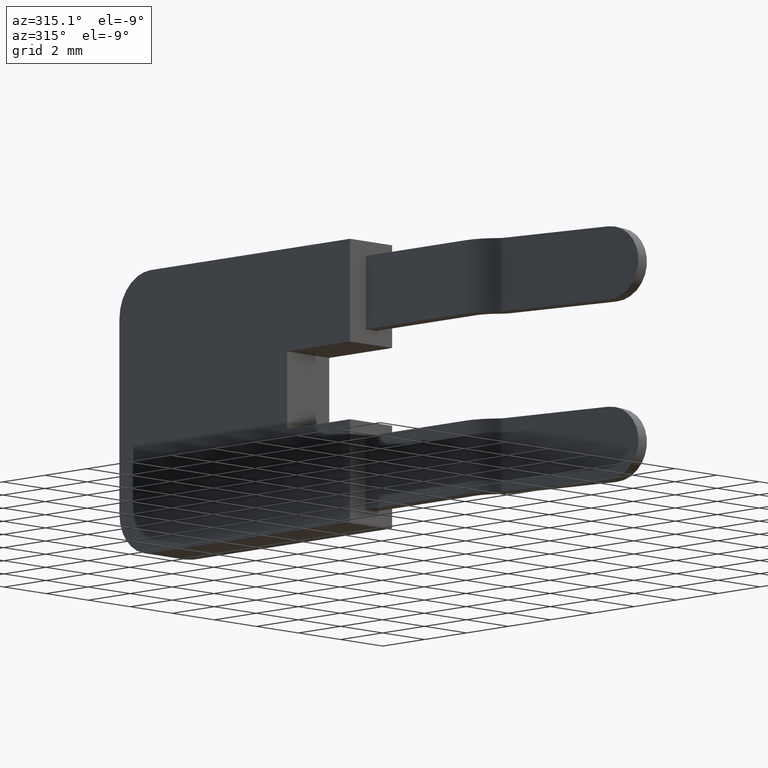
[diagram: clean part render]
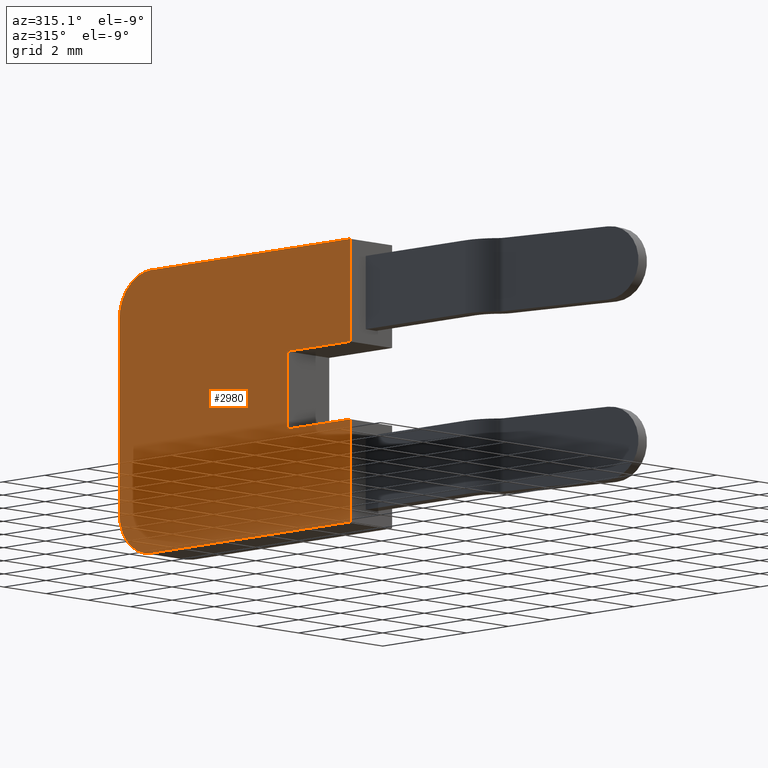
[diagram: same view with one face highlighted and labeled with its STEP entity id]
A machine part, auxiliary view. The second image highlights one B-rep face of the part: STEP entity #2980.
In plain terms, the highlighted planar face has unit normal (1, 0, 0).
Its self-contained STEP definition (entity closure, byte-faithful):
#200=CARTESIAN_POINT('',(-23.1051720133759,-6.04580621180248,-1.25));
#210=VERTEX_POINT('',#200);
#240=CARTESIAN_POINT('',(-23.1051720133759,0.,-1.25));
#250=DIRECTION('',(0.,1.,0.));
#260=VECTOR('',#250,1.);
#270=LINE('',#240,#260);
#280=CARTESIAN_POINT('',(-23.1051720133759,-9.04580621180248,-1.25));
#290=VERTEX_POINT('',#280);
#300=EDGE_CURVE('',#290,#210,#270,.T.);
#680=CARTESIAN_POINT('',(-26.6051720133759,0.454193788197522,-1.25));
#690=VERTEX_POINT('',#680);
#720=CARTESIAN_POINT('',(-25.1051720133759,0.454193788197522,-1.25));
#730=DIRECTION('',(0.,0.,1.));
#740=DIRECTION('',(1.,0.,0.));
#750=AXIS2_PLACEMENT_3D('',#720,#730,#740);
#760=CIRCLE('',#750,1.5);
#770=CARTESIAN_POINT('',(-25.1051720133759,1.95419378819752,-1.25));
#780=VERTEX_POINT('',#770);
#790=EDGE_CURVE('',#780,#690,#760,.T.);
#1020=CARTESIAN_POINT('',(-20.4551720133759,0.,-1.25));
#1030=DIRECTION('',(0.,-1.,0.));
#1040=VECTOR('',#1030,1.);
#1050=LINE('',#1020,#1040);
#1060=CARTESIAN_POINT('',(-20.4551720133759,-6.04580621180248,-1.25));
#1070=VERTEX_POINT('',#1060);
#1080=CARTESIAN_POINT('',(-20.4551720133759,-9.04580621180248,-1.25));
#1090=VERTEX_POINT('',#1080);
#1100=EDGE_CURVE('',#1070,#1090,#1050,.T.);
#2180=CARTESIAN_POINT('',(-26.6051720133759,0.,-1.25));
#2190=DIRECTION('',(0.,-1.,0.));
#2200=VECTOR('',#2190,1.);
#2210=LINE('',#2180,#2200);
#2220=CARTESIAN_POINT('',(-26.6051720133759,-9.04580621180248,-1.25));
#2230=VERTEX_POINT('',#2220);
#2240=EDGE_CURVE('',#690,#2230,#2210,.T.);
#2440=CARTESIAN_POINT('',(-17.706342,-5.636856,-1.25));
#2450=DIRECTION('',(0.,0.,1.));
#2460=DIRECTION('',(1.,0.,0.));
#2470=AXIS2_PLACEMENT_3D('',#2440,#2450,#2460);
#2480=PLANE('',#2470);
#2490=ORIENTED_EDGE('',*,*,#790,.F.);
#2500=ORIENTED_EDGE('',*,*,#2240,.F.);
#2510=CARTESIAN_POINT('',(0.,-9.04580621180248,-1.25));
#2520=DIRECTION('',(1.,0.,0.));
#2530=VECTOR('',#2520,1.);
#2540=LINE('',#2510,#2530);
#2550=EDGE_CURVE('',#2230,#290,#2540,.T.);
#2560=ORIENTED_EDGE('',*,*,#2550,.F.);
#2570=ORIENTED_EDGE('',*,*,#300,.F.);
#2580=CARTESIAN_POINT('',(0.,-6.04580621180248,-1.25));
#2590=DIRECTION('',(1.,0.,0.));
#2600=VECTOR('',#2590,1.);
#2610=LINE('',#2580,#2600);
#2620=EDGE_CURVE('',#210,#1070,#2610,.T.);
#2630=ORIENTED_EDGE('',*,*,#2620,.F.);
#2640=ORIENTED_EDGE('',*,*,#1100,.F.);
#2650=CARTESIAN_POINT('',(0.,-9.04580621180248,-1.25));
#2660=DIRECTION('',(1.,0.,0.));
#2670=VECTOR('',#2660,1.);
#2680=LINE('',#2650,#2670);
#2690=CARTESIAN_POINT('',(-16.9551720133759,-9.04580621180248,-1.25));
#2700=VERTEX_POINT('',#2690);
#2710=EDGE_CURVE('',#1090,#2700,#2680,.T.);
#2720=ORIENTED_EDGE('',*,*,#2710,.F.);
#2730=CARTESIAN_POINT('',(-16.9551720133759,0.,-1.25));
#2740=DIRECTION('',(0.,1.,0.));
#2750=VECTOR('',#2740,1.);
#2760=LINE('',#2730,#2750);
#2770=CARTESIAN_POINT('',(-16.9551720133759,0.454193788197522,-1.25));
#2780=VERTEX_POINT('',#2770);
#2790=EDGE_CURVE('',#2700,#2780,#2760,.T.);
#2800=ORIENTED_EDGE('',*,*,#2790,.F.);
#2810=CARTESIAN_POINT('',(-18.4551720133759,0.454193788197522,-1.25));
#2820=DIRECTION('',(0.,0.,-1.));
#2830=DIRECTION('',(-1.,0.,0.));
#2840=AXIS2_PLACEMENT_3D('',#2810,#2820,#2830);
#2850=CIRCLE('',#2840,1.5);
#2860=CARTESIAN_POINT('',(-18.4551720133759,1.95419378819752,-1.25));
#2870=VERTEX_POINT('',#2860);
#2880=EDGE_CURVE('',#2870,#2780,#2850,.T.);
#2890=ORIENTED_EDGE('',*,*,#2880,.T.);
#2900=CARTESIAN_POINT('',(0.,1.95419378819752,-1.25));
#2910=DIRECTION('',(-1.,0.,0.));
#2920=VECTOR('',#2910,1.);
#2930=LINE('',#2900,#2920);
#2940=EDGE_CURVE('',#2870,#780,#2930,.T.);
#2950=ORIENTED_EDGE('',*,*,#2940,.F.);
#2960=EDGE_LOOP('',(#2950,#2890,#2800,#2720,#2640,#2630,#2570,#2560,
#2500,#2490));
#2970=FACE_OUTER_BOUND('',#2960,.T.);
#2980=ADVANCED_FACE('',(#2970),#2480,.F.);